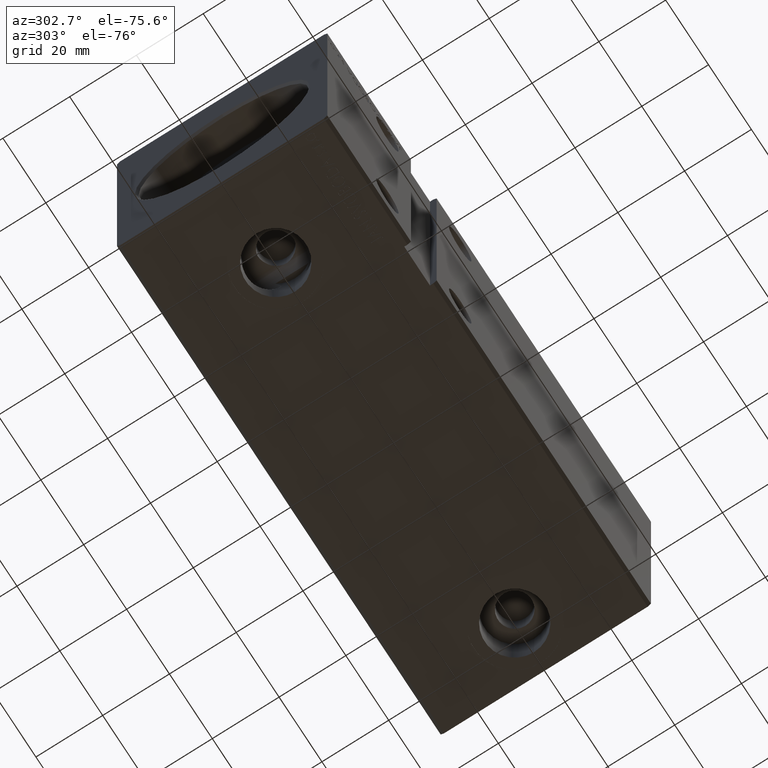
[diagram: clean part render]
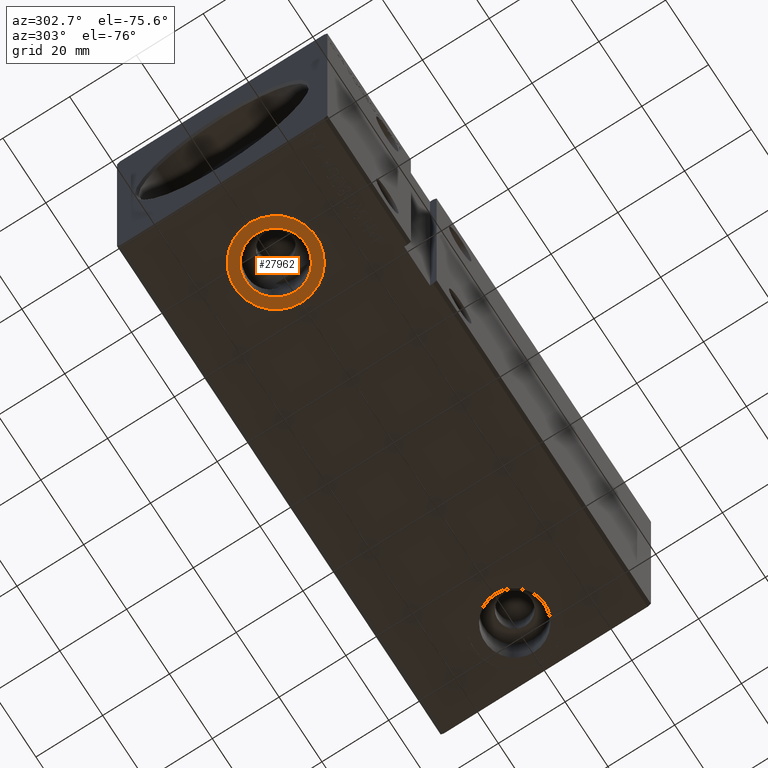
[diagram: same view with one face highlighted and labeled with its STEP entity id]
A machine part, auxiliary view. The second image highlights one B-rep face of the part: STEP entity #27962.
In plain terms, the highlighted planar face has unit normal (0, 0, -1).
Its self-contained STEP definition (entity closure, byte-faithful):
#117 = DIRECTION ( 'NONE',  ( 0.000000000000000000, 0.000000000000000000, -1.000000000000000000 ) ) ;
#872 = DIRECTION ( 'NONE',  ( -1.000000000000000000, 0.000000000000000000, -0.000000000000000000 ) ) ;
#1177 = CARTESIAN_POINT ( 'NONE',  ( 16.00000000000000000, -2.665753871451547918E-15, -42.40000000000000568 ) ) ;
#1259 = CIRCLE ( 'NONE', #35652, 9.000000000000001776 ) ;
#3144 = FACE_OUTER_BOUND ( 'NONE', #31697, .T. ) ;
#5187 = DIRECTION ( 'NONE',  ( 0.000000000000000000, 0.000000000000000000, -1.000000000000000000 ) ) ;
#5422 = EDGE_CURVE ( 'NONE', #23771, #27377, #30789, .T. ) ;
#8493 = CARTESIAN_POINT ( 'NONE',  ( 25.00000000000000000, -2.665753871451547918E-15, -42.40000000000000568 ) ) ;
#8597 = ORIENTED_EDGE ( 'NONE', *, *, #5422, .T. ) ;
#9188 = ORIENTED_EDGE ( 'NONE', *, *, #21171, .F. ) ;
#9231 = DIRECTION ( 'NONE',  ( -1.000000000000000000, 0.000000000000000000, 0.000000000000000000 ) ) ;
#9448 = VERTEX_POINT ( 'NONE', #1177 ) ;
#10186 = CIRCLE ( 'NONE', #12160, 12.25000000000000000 ) ;
#12160 = AXIS2_PLACEMENT_3D ( 'NONE', #40577, #24839, #31065 ) ;
#12391 = DIRECTION ( 'NONE',  ( -1.000000000000000000, 0.000000000000000000, 0.000000000000000000 ) ) ;
#13308 = PLANE ( 'NONE',  #35223 ) ;
#15981 = DIRECTION ( 'NONE',  ( 0.000000000000000000, 0.000000000000000000, -1.000000000000000000 ) ) ;
#16603 = CARTESIAN_POINT ( 'NONE',  ( 0.000000000000000000, 0.000000000000000000, -42.40000000000000568 ) ) ;
#17443 = CARTESIAN_POINT ( 'NONE',  ( 12.75000000000000178, -2.665753871451547918E-15, -42.40000000000000568 ) ) ;
#17904 = AXIS2_PLACEMENT_3D ( 'NONE', #30894, #37115, #40216 ) ;
#20725 = CARTESIAN_POINT ( 'NONE',  ( 34.00000000000000000, -1.563571752218929810E-15, -42.40000000000000568 ) ) ;
#21171 = EDGE_CURVE ( 'NONE', #32242, #9448, #1259, .T. ) ;
#22612 = FACE_BOUND ( 'NONE', #39081, .T. ) ;
#23771 = VERTEX_POINT ( 'NONE', #17443 ) ;
#24637 = ORIENTED_EDGE ( 'NONE', *, *, #31463, .T. ) ;
#24839 = DIRECTION ( 'NONE',  ( 0.000000000000000000, 0.000000000000000000, -1.000000000000000000 ) ) ;
#27377 = VERTEX_POINT ( 'NONE', #34630 ) ;
#27962 = ADVANCED_FACE ( 'NONE', ( #22612, #3144 ), #13308, .T. ) ;
#28144 = AXIS2_PLACEMENT_3D ( 'NONE', #8493, #5187, #12391 ) ;
#28486 = CARTESIAN_POINT ( 'NONE',  ( 25.00000000000000000, -2.665753871451547918E-15, -42.40000000000000568 ) ) ;
#29807 = CIRCLE ( 'NONE', #17904, 9.000000000000001776 ) ;
#30789 = CIRCLE ( 'NONE', #28144, 12.25000000000000000 ) ;
#30894 = CARTESIAN_POINT ( 'NONE',  ( 25.00000000000000000, -2.665753871451547918E-15, -42.40000000000000568 ) ) ;
#31065 = DIRECTION ( 'NONE',  ( -1.000000000000000000, 0.000000000000000000, 0.000000000000000000 ) ) ;
#31463 = EDGE_CURVE ( 'NONE', #27377, #23771, #10186, .T. ) ;
#31697 = EDGE_LOOP ( 'NONE', ( #8597, #24637 ) ) ;
#32242 = VERTEX_POINT ( 'NONE', #20725 ) ;
#32534 = ORIENTED_EDGE ( 'NONE', *, *, #35886, .F. ) ;
#34630 = CARTESIAN_POINT ( 'NONE',  ( 37.25000000000000711, -1.165561542496040578E-15, -42.40000000000000568 ) ) ;
#35223 = AXIS2_PLACEMENT_3D ( 'NONE', #16603, #15981, #872 ) ;
#35652 = AXIS2_PLACEMENT_3D ( 'NONE', #28486, #117, #9231 ) ;
#35886 = EDGE_CURVE ( 'NONE', #9448, #32242, #29807, .T. ) ;
#37115 = DIRECTION ( 'NONE',  ( 0.000000000000000000, 0.000000000000000000, -1.000000000000000000 ) ) ;
#39081 = EDGE_LOOP ( 'NONE', ( #32534, #9188 ) ) ;
#40216 = DIRECTION ( 'NONE',  ( -1.000000000000000000, 0.000000000000000000, 0.000000000000000000 ) ) ;
#40577 = CARTESIAN_POINT ( 'NONE',  ( 25.00000000000000000, -2.665753871451547918E-15, -42.40000000000000568 ) ) ;